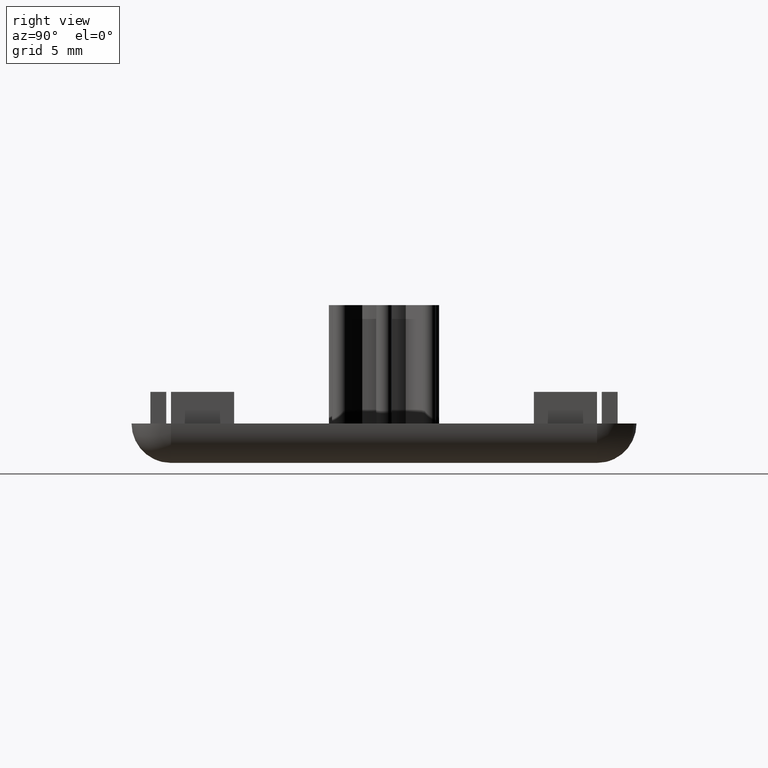
[diagram: clean part render]
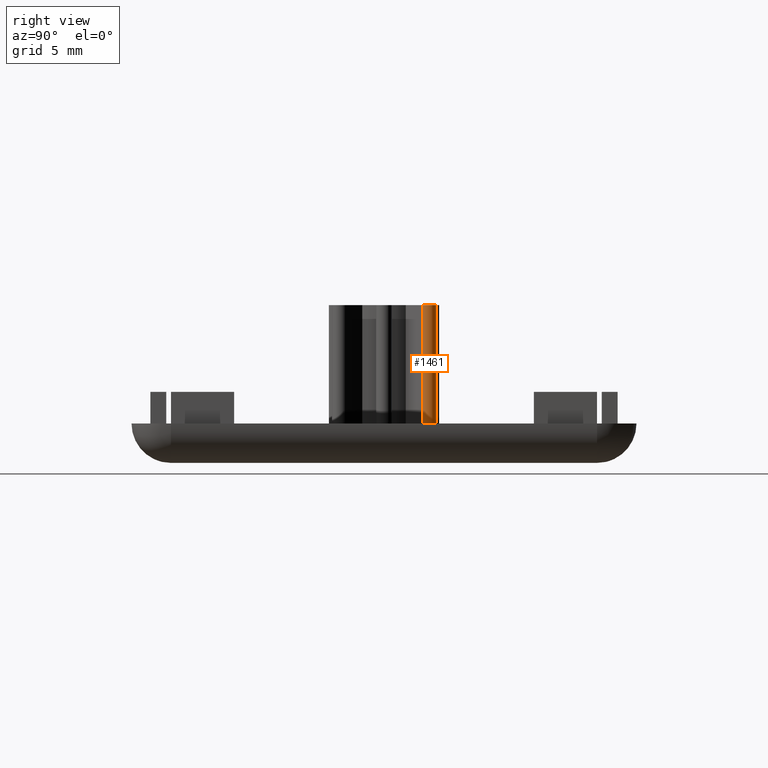
[diagram: same view with one face highlighted and labeled with its STEP entity id]
A machine part, right view. The second image highlights one B-rep face of the part: STEP entity #1461.
In plain terms, the highlighted cylindrical surface (edge-blend (fillet) strip) has radius 0.5 mm, axis along (0, 0, 1).
Its self-contained STEP definition (entity closure, byte-faithful):
#82=LINE('',#2127,#250);
#84=LINE('',#2133,#252);
#250=VECTOR('',#1695,7.5);
#252=VECTOR('',#1701,7.5);
#429=FACE_OUTER_BOUND('',#515,.T.);
#515=EDGE_LOOP('',(#1019,#1020,#1021,#1022));
#611=CIRCLE('',#1553,0.499999999999998);
#612=CIRCLE('',#1554,0.499999999999998);
#659=VERTEX_POINT('',#2124);
#660=VERTEX_POINT('',#2126);
#661=VERTEX_POINT('',#2130);
#662=VERTEX_POINT('',#2132);
#802=EDGE_CURVE('',#660,#659,#82,.T.);
#804=EDGE_CURVE('',#659,#661,#611,.T.);
#805=EDGE_CURVE('',#662,#661,#84,.T.);
#806=EDGE_CURVE('',#660,#662,#612,.T.);
#1019=ORIENTED_EDGE('',*,*,#804,.T.);
#1020=ORIENTED_EDGE('',*,*,#805,.F.);
#1021=ORIENTED_EDGE('',*,*,#806,.F.);
#1022=ORIENTED_EDGE('',*,*,#802,.T.);
#1439=CYLINDRICAL_SURFACE('',#1552,0.499999999999998);
#1461=ADVANCED_FACE('',(#429),#1439,.T.);
#1552=AXIS2_PLACEMENT_3D('',#2129,#1697,#1698);
#1553=AXIS2_PLACEMENT_3D('',#2131,#1699,#1700);
#1554=AXIS2_PLACEMENT_3D('',#2134,#1702,#1703);
#1695=DIRECTION('',(0.,0.,1.));
#1697=DIRECTION('center_axis',(0.,0.,1.));
#1698=DIRECTION('ref_axis',(0.707106781186546,-0.707106781186549,0.));
#1699=DIRECTION('center_axis',(0.,0.,-1.));
#1700=DIRECTION('ref_axis',(0.707106781186546,-0.707106781186549,0.));
#1701=DIRECTION('',(0.,0.,1.));
#1702=DIRECTION('center_axis',(0.,0.,-1.));
#1703=DIRECTION('ref_axis',(0.707106781186546,-0.707106781186549,0.));
#2124=CARTESIAN_POINT('',(-8.25968890014688,5.65130080653088,10.));
#2126=CARTESIAN_POINT('',(-8.25968890014688,5.65130080653088,2.5));
#2127=CARTESIAN_POINT('',(-8.25968890014688,5.65130080653088,2.5));
#2129=CARTESIAN_POINT('Origin',(-7.9061355095536,5.29774741593761,2.5));
#2130=CARTESIAN_POINT('',(-7.55258211896033,4.94419402534433,10.));
#2131=CARTESIAN_POINT('Origin',(-7.9061355095536,5.29774741593761,10.));
#2132=CARTESIAN_POINT('',(-7.55258211896033,4.94419402534433,2.5));
#2133=CARTESIAN_POINT('',(-7.55258211896033,4.94419402534433,2.5));
#2134=CARTESIAN_POINT('Origin',(-7.9061355095536,5.29774741593761,2.5));